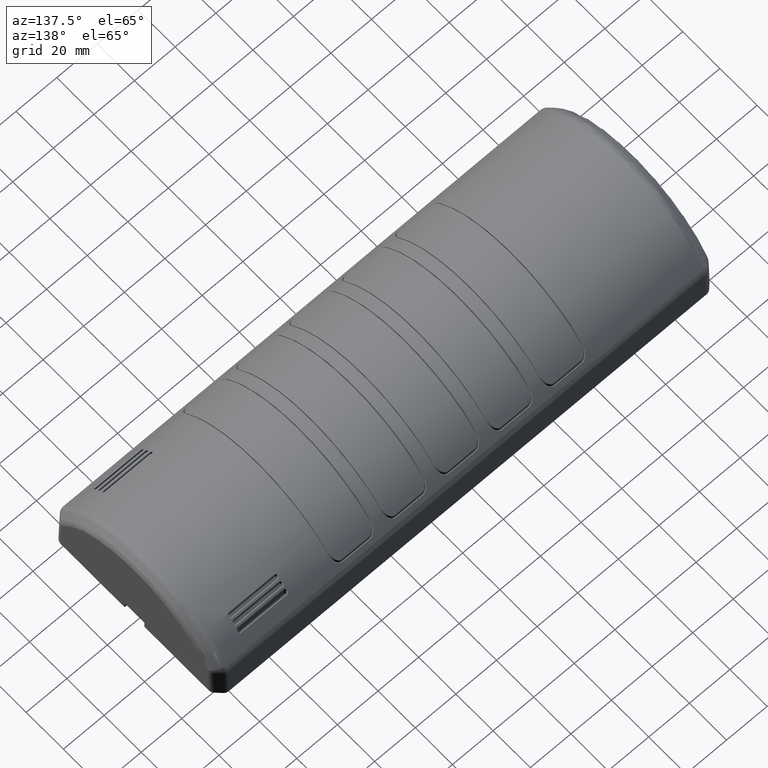
[diagram: clean part render]
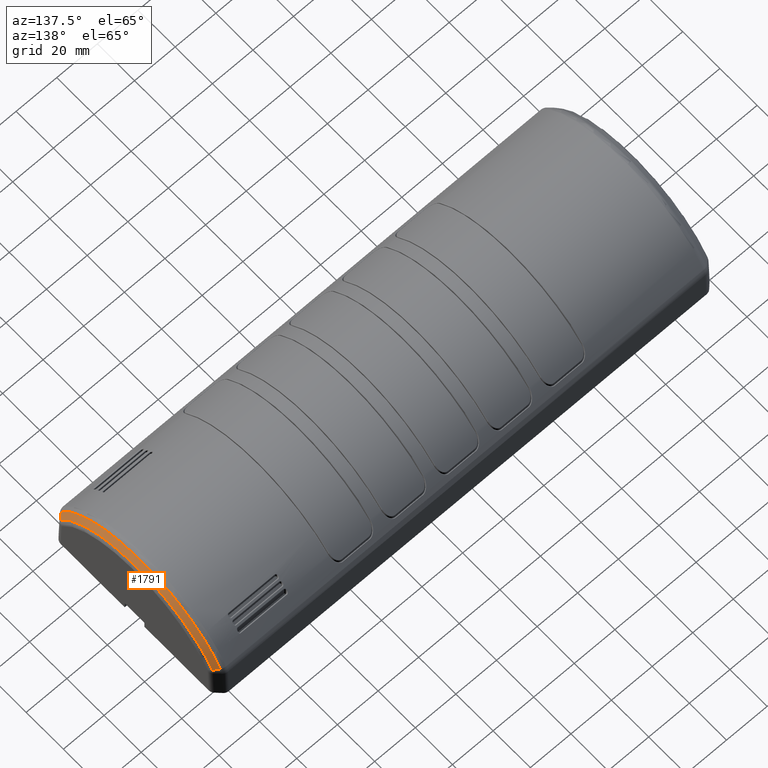
[diagram: same view with one face highlighted and labeled with its STEP entity id]
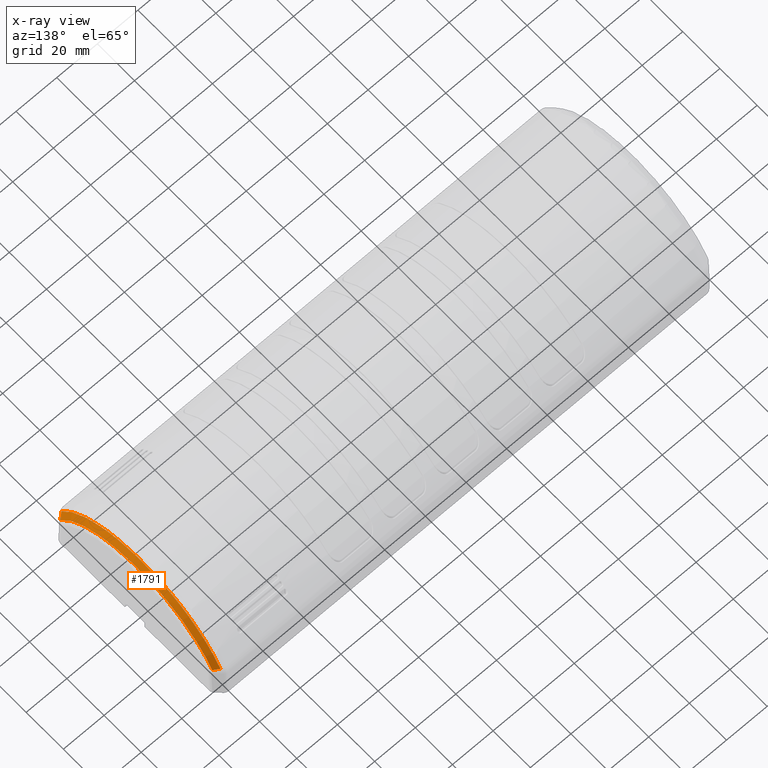
[diagram: x-ray of the same camera — body ghosted, the highlighted face saturated]
A machine part, auxiliary view. The second image highlights one B-rep face of the part: STEP entity #1791.
The next image is the same camera in x-ray: the body ghosted, the highlighted face saturated — about 0% of this face is hidden behind the body in this view.
In plain terms, the highlighted conical surface has half-angle 45 deg.
Its self-contained STEP definition (entity closure, byte-faithful):
#810=CONICAL_SURFACE('',#12880,47.5,45.);
#1791=ADVANCED_FACE('',(#2556),#810,.T.);
#2556=FACE_OUTER_BOUND('',#3266,.T.);
#3266=EDGE_LOOP('',(#5747,#5748,#5749,#5750));
#5747=ORIENTED_EDGE('',*,*,#10284,.F.);
#5748=ORIENTED_EDGE('',*,*,#10337,.T.);
#5749=ORIENTED_EDGE('',*,*,#10338,.T.);
#5750=ORIENTED_EDGE('',*,*,#10339,.T.);
#9069=VERTEX_POINT('',#26943);
#9070=VERTEX_POINT('',#26962);
#9095=VERTEX_POINT('',#27926);
#9096=VERTEX_POINT('',#27945);
#10284=EDGE_CURVE('',#9069,#9070,#12019,.T.);
#10337=EDGE_CURVE('',#9069,#9095,#12072,.T.);
#10338=EDGE_CURVE('',#9095,#9096,#12073,.T.);
#10339=EDGE_CURVE('',#9096,#9070,#12074,.T.);
#12019=B_SPLINE_CURVE_WITH_KNOTS('',3,(#26944,#26945,#26946,#26947,#26948,
#26949,#26950,#26951,#26952,#26953,#26954,#26955,#26956,#26957,#26958,#26959,
#26960,#26961),.UNSPECIFIED.,.F.,.F.,(4,2,2,2,2,2,2,2,4),(0.,0.125,0.25,
0.375,0.5,0.625,0.75,0.875,1.),.UNSPECIFIED.);
#12072=B_SPLINE_CURVE_WITH_KNOTS('',3,(#27922,#27923,#27924,#27925),.UNSPECIFIED.,
 .F.,.F.,(4,4),(0.,1.),.UNSPECIFIED.);
#12073=B_SPLINE_CURVE_WITH_KNOTS('',3,(#27927,#27928,#27929,#27930,#27931,
#27932,#27933,#27934,#27935,#27936,#27937,#27938,#27939,#27940,#27941,#27942,
#27943,#27944),.UNSPECIFIED.,.F.,.F.,(4,2,2,2,2,2,2,2,4),(0.,0.125,0.25,
0.375,0.5,0.625,0.75,0.875,1.),.UNSPECIFIED.);
#12074=B_SPLINE_CURVE_WITH_KNOTS('',3,(#27946,#27947,#27948,#27949),.UNSPECIFIED.,
 .F.,.F.,(4,4),(0.,1.),.UNSPECIFIED.);
#12880=AXIS2_PLACEMENT_3D('',#27950,#13772,#13773);
#13772=DIRECTION('',(-1.,0.,0.));
#13773=DIRECTION('',(5.29939391229192E-017,-1.,0.));
#26943=CARTESIAN_POINT('',(183.478679656443,-42.7821004152124,19.8496598625357));
#26944=CARTESIAN_POINT('',(183.478679656443,-42.7821004152125,19.8496598625357));
#26945=CARTESIAN_POINT('',(183.478679656443,-40.7113576761885,23.6849492064386));
#26946=CARTESIAN_POINT('',(183.478679656443,-38.1219938232649,27.2397951975869));
#26947=CARTESIAN_POINT('',(183.478679656443,-32.0912878124739,33.5342581915294));
#26948=CARTESIAN_POINT('',(183.478679656443,-28.650469602548,36.2733283311667));
#26949=CARTESIAN_POINT('',(183.478679656443,-21.1640865915968,40.7391707806989));
#26950=CARTESIAN_POINT('',(183.478679656443,-17.1191722077798,42.4655550980512));
#26951=CARTESIAN_POINT('',(183.478679656443,-8.71530340198146,44.7817304941799));
#26952=CARTESIAN_POINT('',(183.478679656443,-4.35707910840516,45.3713203435597));
#26953=CARTESIAN_POINT('',(183.478679656443,4.36012682989309,45.3713203435596));
#26954=CARTESIAN_POINT('',(183.478679656443,8.71835112346936,44.7817304941799));
#26955=CARTESIAN_POINT('',(183.478679656443,17.1222199292677,42.4655550980512));
#26956=CARTESIAN_POINT('',(183.478679656443,21.1671343130847,40.7391707806988));
#26957=CARTESIAN_POINT('',(183.478679656443,28.6535173240359,36.2733283311666));
#26958=CARTESIAN_POINT('',(183.478679656443,32.0943355339618,33.5342581915294));
#26959=CARTESIAN_POINT('',(183.478679656443,38.1250415447528,27.2397951975868));
#26960=CARTESIAN_POINT('',(183.478679656443,40.7144053976764,23.6849492064386));
#26961=CARTESIAN_POINT('',(183.478679656443,42.7851481367003,19.8496598625357));
#26962=CARTESIAN_POINT('',(183.478679656443,42.7851481367003,19.8496598625357));
#27922=CARTESIAN_POINT('',(183.478679656443,-42.7821004152124,19.8496598625357));
#27923=CARTESIAN_POINT('',(184.226226552149,-42.1243073876153,19.4945053973732));
#27924=CARTESIAN_POINT('',(184.973773447856,-41.4665143600182,19.1393509322107));
#27925=CARTESIAN_POINT('',(185.721320343562,-40.808721332421,18.7841964670481));
#27926=CARTESIAN_POINT('',(185.721320343562,-40.808721332421,18.7841964670481));
#27927=CARTESIAN_POINT('',(185.721320343562,-40.808721332421,18.7841964670481));
#27928=CARTESIAN_POINT('',(185.721320343562,-38.8334908478212,22.4425844872367));
#27929=CARTESIAN_POINT('',(185.721320343562,-36.3635604592562,25.8334645021453));
#27930=CARTESIAN_POINT('',(185.721320343562,-30.6110185661052,31.837597683692));
#27931=CARTESIAN_POINT('',(185.721320343562,-27.3289068425527,34.450329211037));
#27932=CARTESIAN_POINT('',(185.721320343562,-20.1878305205413,38.710186304581));
#27933=CARTESIAN_POINT('',(185.721320343562,-16.329486339034,40.3569417742521));
#27934=CARTESIAN_POINT('',(185.721320343562,-8.31324292020422,42.5662844240638));
#27935=CARTESIAN_POINT('',(185.721320343562,-4.15604013438014,43.1286796564404));
#27936=CARTESIAN_POINT('',(185.721320343562,4.159087855868,43.1286796564404));
#27937=CARTESIAN_POINT('',(185.721320343562,8.31629064169206,42.5662844240638));
#27938=CARTESIAN_POINT('',(185.721320343562,16.3325340605218,40.3569417742521));
#27939=CARTESIAN_POINT('',(185.721320343562,20.1908782420292,38.710186304581));
#27940=CARTESIAN_POINT('',(185.721320343562,27.3319545640405,34.450329211037));
#27941=CARTESIAN_POINT('',(185.721320343562,30.614066287593,31.837597683692));
#27942=CARTESIAN_POINT('',(185.721320343562,36.3666081807441,25.8334645021453));
#27943=CARTESIAN_POINT('',(185.721320343562,38.8365385693091,22.4425844872367));
#27944=CARTESIAN_POINT('',(185.721320343562,40.8117690539089,18.7841964670481));
#27945=CARTESIAN_POINT('',(185.721320343562,40.8117690539089,18.7841964670481));
#27946=CARTESIAN_POINT('',(185.721320343562,40.8117690539088,18.7841964670481));
#27947=CARTESIAN_POINT('',(184.973773447856,41.469562081506,19.1393509322106));
#27948=CARTESIAN_POINT('',(184.226226552149,42.1273551091032,19.4945053973732));
#27949=CARTESIAN_POINT('',(183.478679656443,42.7851481367003,19.8496598625357));
#27950=CARTESIAN_POINT('',(184.600000000003,0.00152386074393426,-3.25));